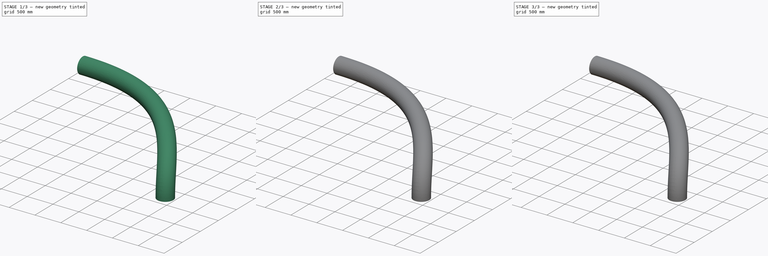
[diagram: build sequence overview — one tinted view per stage of 3, left to right]
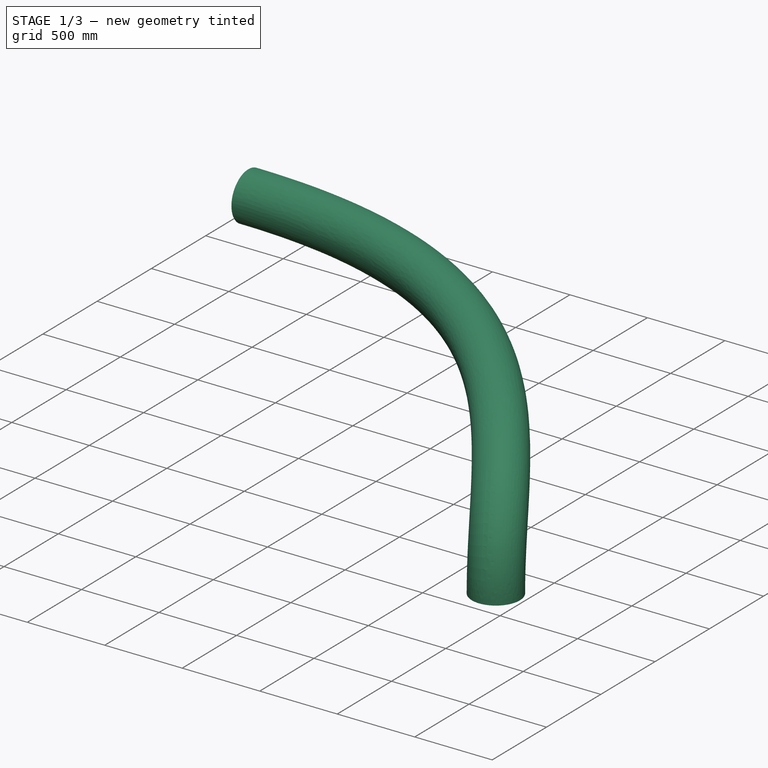
[diagram: stage 1 of 3 — iso view after this stage's code; geometry added in this stage tinted green]
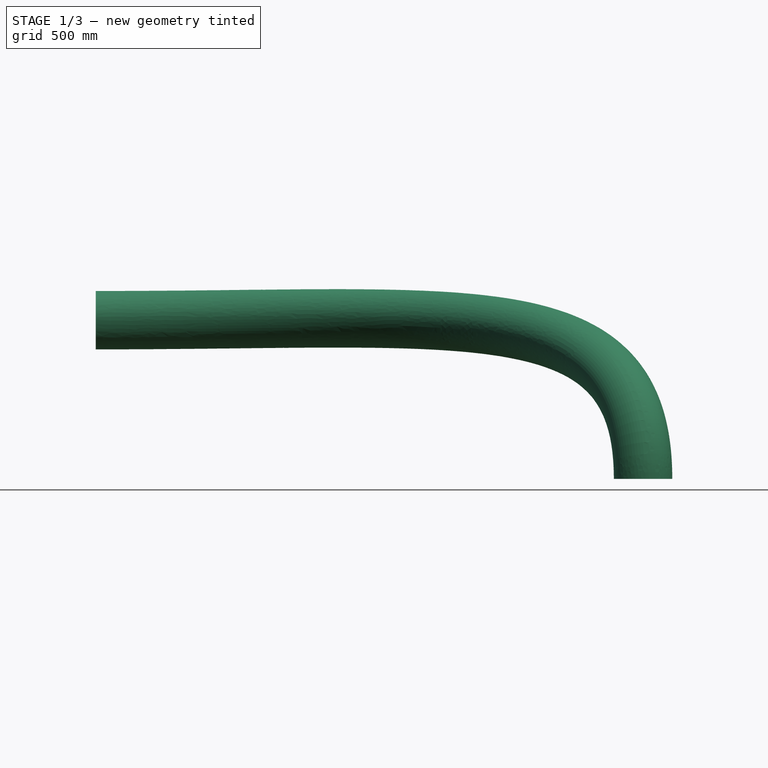
[diagram: stage 1 of 3 — front view after this stage's code; geometry added in this stage tinted green]
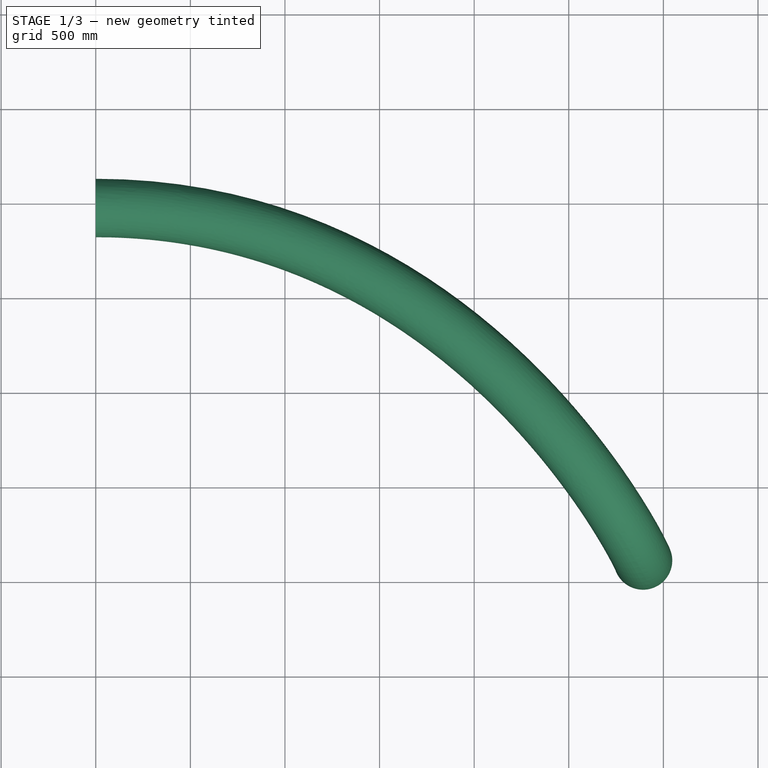
[diagram: stage 1 of 3 — top view after this stage's code; geometry added in this stage tinted green]
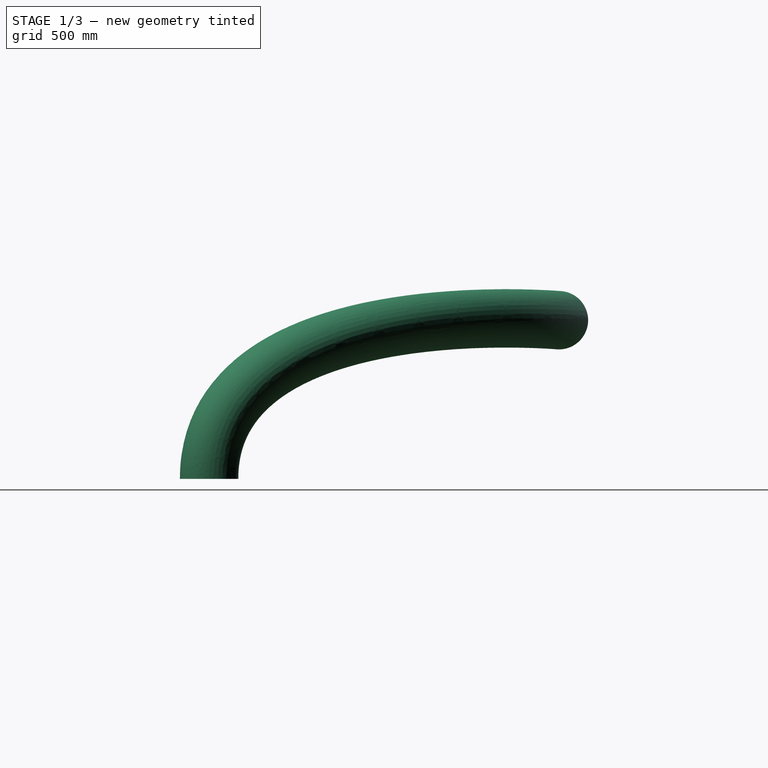
[diagram: stage 1 of 3 — right view after this stage's code; geometry added in this stage tinted green]
FCSTD DOCUMENT  (FreeCAD 1.0R38641 +468 (Git))
Label: Duct_flex_complete_R05
License: All rights reserved
LicenseURL: https://en.wikipedia.org/wiki/All_rights_reserved
objects: Sketcher::SketchObject×8, Part::Sweep×4, Part::Part2DObjectPython×3, App::DocumentObjectGroup×3, App::MaterialObjectPython×3, Part::Cut×3, Spreadsheet::Sheet×1, App::TextDocument×1, App::VarSet×1, App::DocumentObjectGroupPython×1
note: 26 computed .brp shape members not serialized (recipe doc carries the construction recipe); baked Part::Feature solids carry a one-line shape summary decoded from their .brp

FEATURE [Sketcher::SketchObject] Sketch004  label="Opening_01_external_insulation"
  ArcFitTolerance = 0
  AttachmentOffset = pos=(0,0,-1000) rot=(0,0,1;0rad)
  AttachmentSupport = -> [Line]
  FullyConstrained = true
  MakeInternals = false
  MapMode = 45
  Placement = pos=(-3000,-3535.92,838.348) rot=(0.57735,0.57735,0.57735;2.0944rad)
  expr: .AttachmentOffset.Base.z = -VarSet.Duct_Opening1_axis.Length / 2
  expr: .Constraints.Diameter = VarSet.Duct_Opening1_diameter + 2 * VarSet.Duct_Sheet_thickness + 2 * VarSet.Insulation_Thickness
  expr: AttachmentSupport = VarSet.Duct_Opening1_axis
  expr: MapReversed = VarSet.Duct_Opening1_axis_flip
  sketch-geometry (1):
    g0: Circle CenterX=0 CenterY=0 CenterZ=0 NormalX=0 NormalY=0 NormalZ=1 AngleXU=0 Radius=153.4
  constraints (2):
    c: Coincident(g0,g-1)
    c: Diameter(g0) = 306.8  'Diameter'
FEATURE [Sketcher::SketchObject] Sketch005  label="Opening_02_external_insulation"
  ArcFitTolerance = 0
  AttachmentOffset = pos=(0,0,-500) rot=(0,0,1;0rad)
  AttachmentSupport = -> [Line001]
  FullyConstrained = true
  MakeInternals = false
  MapMode = 45
  Placement = pos=(-107.465,-5384.62,0) rot=(0,0,1;0rad)
  expr: .AttachmentOffset.Base.z = -VarSet.Duct_Opening2_axis.Length / 2
  expr: .Constraints.Diameter = VarSet.Duct_Opening2_diameter + 2 * VarSet.Duct_Sheet_thickness + 2 * VarSet.Insulation_Thickness
  expr: AttachmentSupport = VarSet.Duct_Opening2_axis
  expr: MapReversed = VarSet.Duct_Opening2_axis_flip
  sketch-geometry (1):
    g0: Circle CenterX=0 CenterY=0 CenterZ=0 NormalX=0 NormalY=0 NormalZ=1 AngleXU=0 Radius=153.4
  constraints (2):
    c: Coincident(g0,g-1)
    c: Diameter(g0) = 306.8  'Diameter'
FEATURE [Part::Sweep] Sweep002  label="Duct_flex_external_insulation"
  Frenet = false
  Sections = -> [Sketch004,Sketch005]
  Solid = true
  Spine = -> BezCurve
  Transition = 2
  expr: Spine = VarSet.Duct_Axis_Bezier_curve
FEATURE [Sketcher::SketchObject] Sketch006  label="Opening_01_external_02"
  ArcFitTolerance = 0
  AttachmentOffset = pos=(0,0,-1000) rot=(0,0,1;0rad)
  AttachmentSupport = -> [Line]
  FullyConstrained = true
  MakeInternals = false
  MapMode = 45
  Placement = pos=(-3000,-3535.92,838.348) rot=(0.57735,0.57735,0.57735;2.0944rad)
  expr: .AttachmentOffset.Base.z = -VarSet.Duct_Opening1_axis.Length / 2
  expr: .Constraints.Diameter = VarSet.Duct_Opening1_diameter + 2 * VarSet.Duct_Sheet_thickness + 2 * VarSet.Insulation_Thickness + 2 * VarSet.Duct_Sheet_thickness
  expr: AttachmentSupport = VarSet.Duct_Opening1_axis
  expr: MapReversed = VarSet.Duct_Opening1_axis_flip
  sketch-geometry (1):
    g0: Circle CenterX=0 CenterY=0 CenterZ=0 NormalX=0 NormalY=0 NormalZ=1 AngleXU=0 Radius=154.4
  constraints (2):
    c: Coincident(g0,g-1)
    c: Diameter(g0) = 308.8  'Diameter'
FEATURE [Sketcher::SketchObject] Sketch007  label="Opening_02_external_02"
  ArcFitTolerance = 0
  AttachmentOffset = pos=(0,0,-500) rot=(0,0,1;0rad)
  AttachmentSupport = -> [Line001]
  FullyConstrained = true
  MakeInternals = false
  MapMode = 45
  Placement = pos=(-107.465,-5384.62,0) rot=(0,0,1;0rad)
  expr: .AttachmentOffset.Base.z = -VarSet.Duct_Opening2_axis.Length / 2
  expr: .Constraints.Diameter = VarSet.Duct_Opening2_diameter + 2 * VarSet.Duct_Sheet_thickness + 2 * VarSet.Insulation_Thickness + 2 * VarSet.Duct_Sheet_thickness
  expr: AttachmentSupport = VarSet.Duct_Opening2_axis
  expr: MapReversed = VarSet.Duct_Opening2_axis_flip
  sketch-geometry (1):
    g0: Circle CenterX=0 CenterY=0 CenterZ=0 NormalX=0 NormalY=0 NormalZ=1 AngleXU=0 Radius=154.4
  constraints (2):
    c: Coincident(g0,g-1)
    c: Diameter(g0) = 308.8  'Diameter'
FEATURE [Part::Sweep] Sweep003  label="Duct_flex_external_02"
  Frenet = false
  Sections = -> [Sketch006,Sketch007]
  Solid = true
  Spine = -> BezCurve
  Transition = 2
  expr: Spine = VarSet.Duct_Axis_Bezier_curve
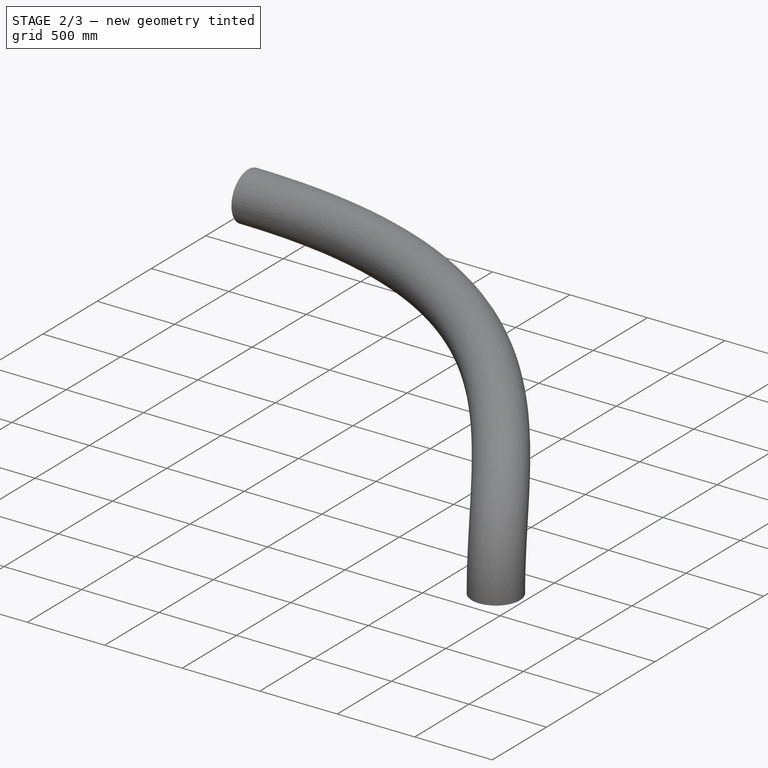
[diagram: stage 2 of 3 — iso view after this stage's code; geometry added in this stage tinted green]
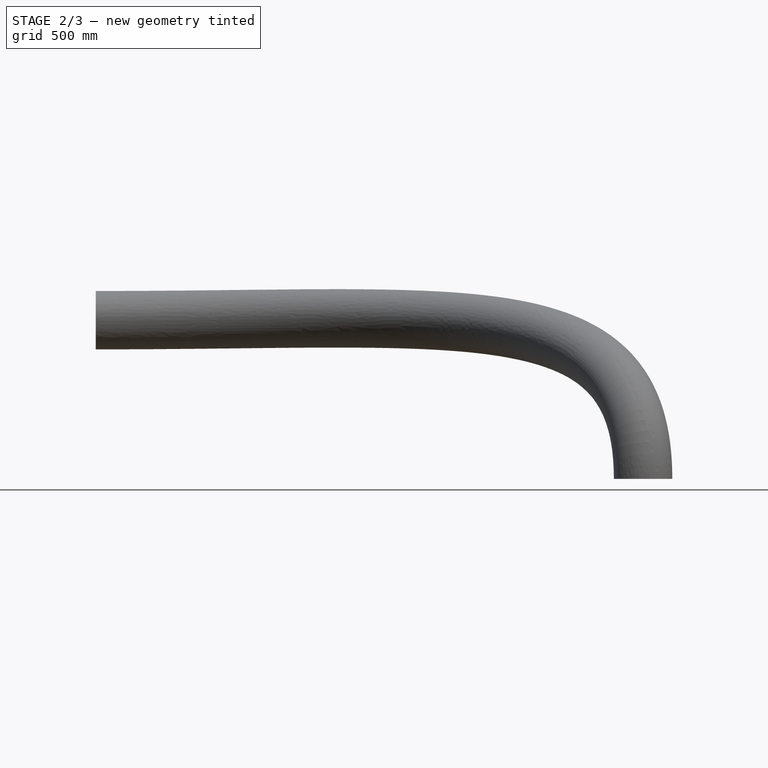
[diagram: stage 2 of 3 — front view after this stage's code; geometry added in this stage tinted green]
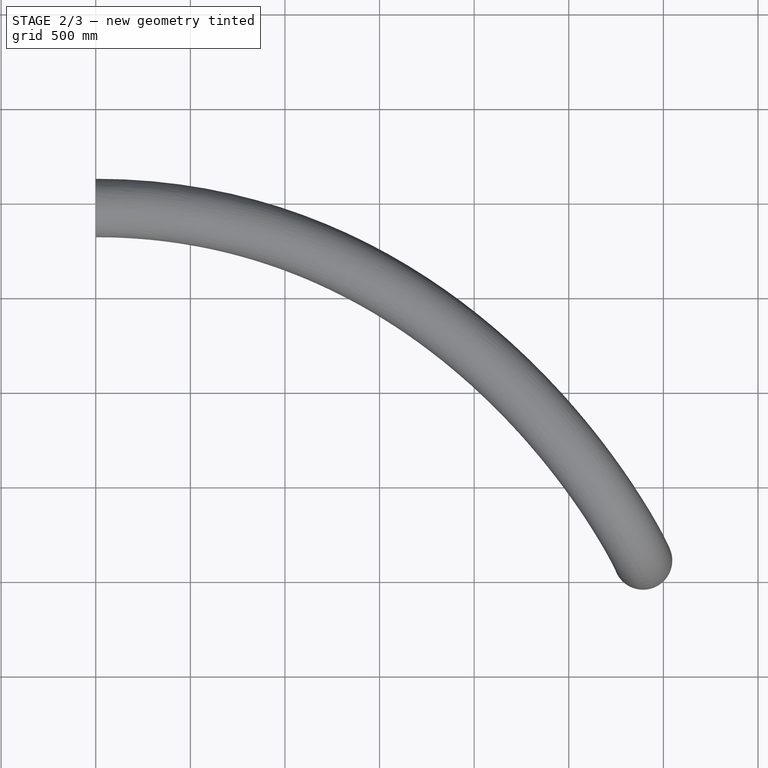
[diagram: stage 2 of 3 — top view after this stage's code; geometry added in this stage tinted green]
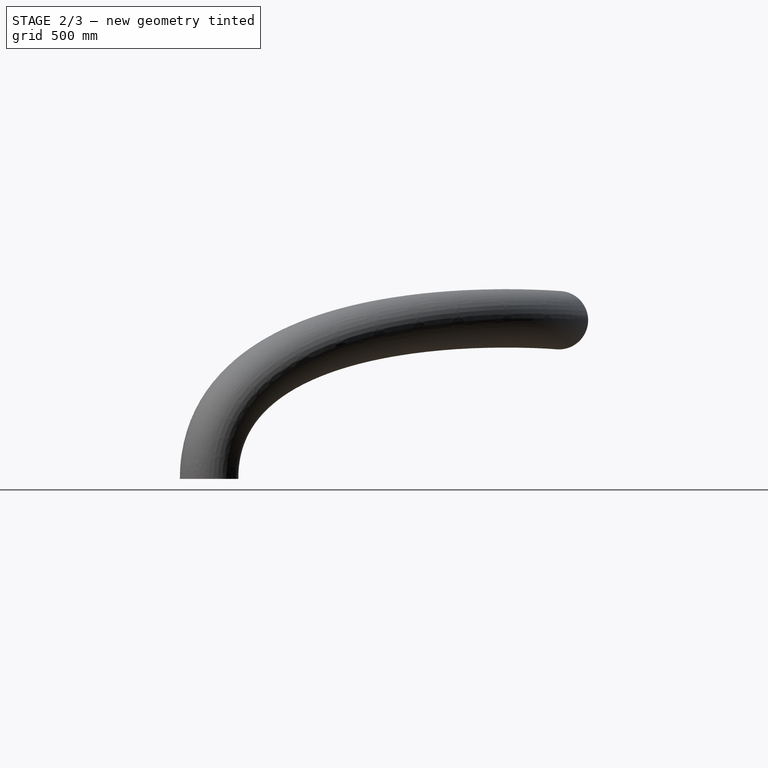
[diagram: stage 2 of 3 — right view after this stage's code; geometry added in this stage tinted green]
FEATURE [Part::Part2DObjectPython] Line  label="Opening1_axis"  # Draft 2D object (typed FeaturePython)
  Area = 0
  ChamferSize = 0
  Closed = false
  End = (-1000,-3535.92,838.348)
  FilletRadius = 0
  Length = 2000
  MakeFace = true
  Placement = pos=(-3000,-3535.92,838.348) rot=(0,0,1;0rad)
  Points = (2) [(0,0,0),(2000,0,0)]
  Start = (-3000,-3535.92,838.348)
  Subdivisions = 0
FEATURE [Part::Part2DObjectPython] Line001  label="Opening2_axis"  # Draft 2D object (typed FeaturePython)
  Area = 0
  ChamferSize = 0
  Closed = false
  End = (-107.465,-5384.62,1000)
  FilletRadius = 0
  Length = 1000
  MakeFace = true
  Placement = pos=(-107.465,-5384.62,0) rot=(0,0,1;0rad)
  Points = (2) [(0,0,0),(0,0,1000)]
  Start = (-107.465,-5384.62,0)
  Subdivisions = 0
FEATURE [Sketcher::SketchObject] Sketch  label="Opening_internal_02_"
  ArcFitTolerance = 0
  AttachmentOffset = pos=(0,0,-500) rot=(0,0,1;0rad)
  AttachmentSupport = -> [Line001]
  FullyConstrained = true
  MakeInternals = false
  MapMode = 45
  Placement = pos=(-107.465,-5384.62,0) rot=(0,0,1;0rad)
  expr: .AttachmentOffset.Base.z = -VarSet.Duct_Opening2_axis.Length / 2
  expr: .Constraints.Diameter = VarSet.Duct_Opening2_diameter
  expr: AttachmentSupport = VarSet.Duct_Opening2_axis
  expr: MapReversed = VarSet.Duct_Opening2_axis_flip
  sketch-geometry (1):
    g0: Circle CenterX=0 CenterY=0 CenterZ=0 NormalX=0 NormalY=0 NormalZ=1 AngleXU=0 Radius=127
  constraints (2):
    c: Coincident(g0,g-1)
    c: Diameter(g0) = 254  'Diameter'
FEATURE [Sketcher::SketchObject] Sketch001  label="Opening_internal_01"
  ArcFitTolerance = 0
  AttachmentOffset = pos=(0,0,-1000) rot=(0,0,1;0rad)
  AttachmentSupport = -> [Line]
  FullyConstrained = true
  MakeInternals = false
  MapMode = 45
  Placement = pos=(-3000,-3535.92,838.348) rot=(0.57735,0.57735,0.57735;2.0944rad)
  expr: .AttachmentOffset.Base.z = -VarSet.Duct_Opening1_axis.Length / 2
  expr: .Constraints.Diameter = VarSet.Duct_Opening1_diameter
  expr: AttachmentSupport = VarSet.Duct_Opening1_axis
  expr: MapReversed = VarSet.Duct_Opening1_axis_flip
  sketch-geometry (1):
    g0: Circle CenterX=0 CenterY=0 CenterZ=0 NormalX=0 NormalY=0 NormalZ=1 AngleXU=0 Radius=127
  constraints (2):
    c: Coincident(g0,g-1)
    c: Diameter(g0) = 254  'Diameter'
FEATURE [Part::Part2DObjectPython] BezCurve  label="Axis_BezCurve"  # Draft 2D object (typed FeaturePython)
  Area = 0
  Closed = false
  Degree = 3
  Length = 3994
  MakeFace = true
  Points = (4) [(-3000,-3535.92,838.348),(-1000,-3535.92,838.348),(-107.465,-5384.62,1000),(-107.465,-5384.62,0)]
FEATURE [Part::Sweep] Sweep  label="Duct_flex_internal_"
  Frenet = false
  Sections = -> [Sketch001,Sketch]
  Solid = true
  Spine = -> BezCurve
  Transition = 2
  expr: Spine = VarSet.Duct_Axis_Bezier_curve
  expr: Visibility = VarSet.Duct_Show_volume_only
FEATURE [Sketcher::SketchObject] Sketch002  label="Opening_02_external_"
  ArcFitTolerance = 0
  AttachmentOffset = pos=(0,0,-500) rot=(0,0,1;0rad)
  AttachmentSupport = -> [Line001]
  FullyConstrained = true
  MakeInternals = false
  MapMode = 45
  Placement = pos=(-107.465,-5384.62,0) rot=(0,0,1;0rad)
  expr: .AttachmentOffset.Base.z = -VarSet.Duct_Opening2_axis.Length / 2
  expr: .Constraints.Diameter = VarSet.Duct_Opening2_diameter + 2 * VarSet.Duct_Sheet_thickness
  expr: AttachmentSupport = VarSet.Duct_Opening2_axis
  expr: MapReversed = VarSet.Duct_Opening2_axis_flip
  sketch-geometry (1):
    g0: Circle CenterX=0 CenterY=0 CenterZ=0 NormalX=0 NormalY=0 NormalZ=1 AngleXU=0 Radius=128
  constraints (2):
    c: Coincident(g0,g-1)
    c: Diameter(g0) = 256  'Diameter'
FEATURE [Sketcher::SketchObject] Sketch003  label="Opening_01_external_"
  ArcFitTolerance = 0
  AttachmentOffset = pos=(0,0,-1000) rot=(0,0,1;0rad)
  AttachmentSupport = -> [Line]
  FullyConstrained = true
  MakeInternals = false
  MapMode = 45
  Placement = pos=(-3000,-3535.92,838.348) rot=(0.57735,0.57735,0.57735;2.0944rad)
  expr: .AttachmentOffset.Base.z = -VarSet.Duct_Opening1_axis.Length / 2
  expr: .Constraints.Diameter = VarSet.Duct_Opening1_diameter + 2 * VarSet.Duct_Sheet_thickness
  expr: AttachmentSupport = VarSet.Duct_Opening1_axis
  expr: MapReversed = VarSet.Duct_Opening1_axis_flip
  sketch-geometry (1):
    g0: Circle CenterX=0 CenterY=0 CenterZ=0 NormalX=0 NormalY=0 NormalZ=1 AngleXU=0 Radius=128
  constraints (2):
    c: Coincident(g0,g-1)
    c: Diameter(g0) = 256  'Diameter'
FEATURE [Part::Sweep] Sweep001  label="Duct_flex_external_"
  Frenet = false
  Sections = -> [Sketch003,Sketch002]
  Solid = true
  Spine = -> BezCurve
  Transition = 2
  expr: Spine = VarSet.Duct_Axis_Bezier_curve
FEATURE [Part::Cut] Cut002  label="Duct_flex_external_003"
  Base = -> Sweep003
  Base_Area = 3.87468e+06
  Material = -> Material049
  Tool = -> Sweep002
  expr: Base_Area = .Shape.Face1.Area + .Shape.Face2.Area
  expr: Material = VarSet.Materials_Sheet_metal
  expr: Visibility = VarSet.Duct_Duct_external * (1 - VarSet.Duct_Show_volume_only)
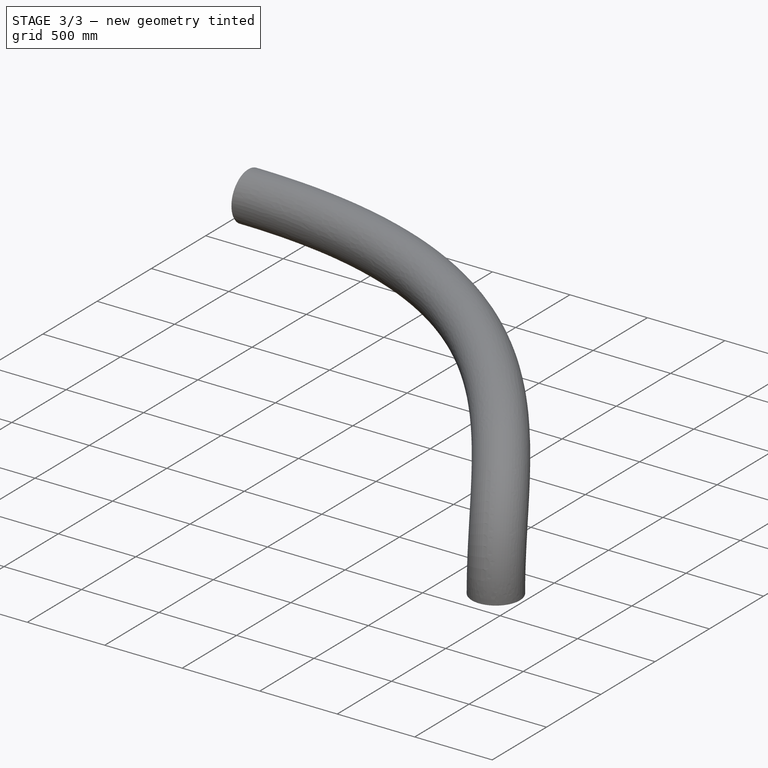
[diagram: stage 3 of 3 — iso view after this stage's code; geometry added in this stage tinted green]
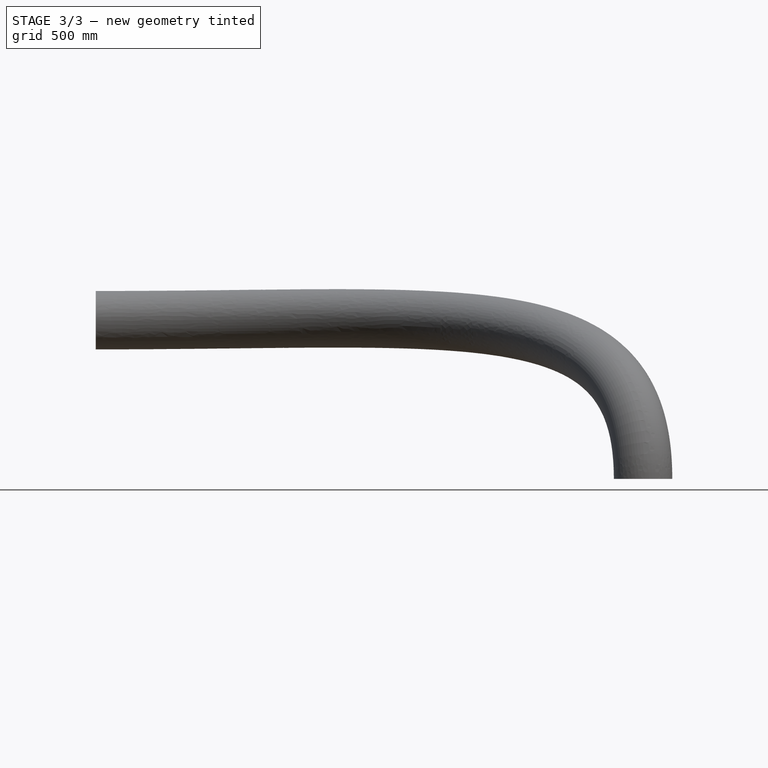
[diagram: stage 3 of 3 — front view after this stage's code; geometry added in this stage tinted green]
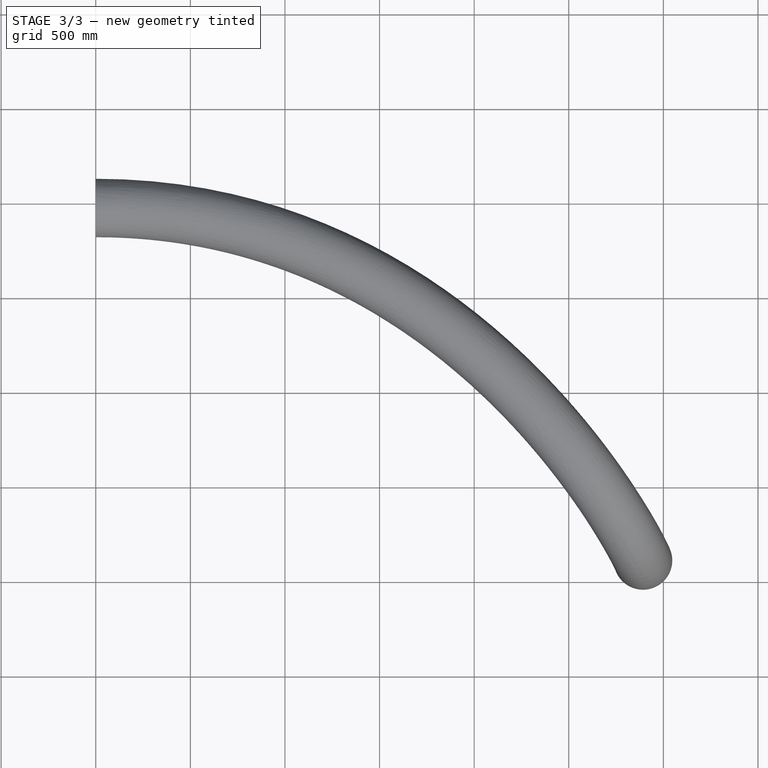
[diagram: stage 3 of 3 — top view after this stage's code; geometry added in this stage tinted green]
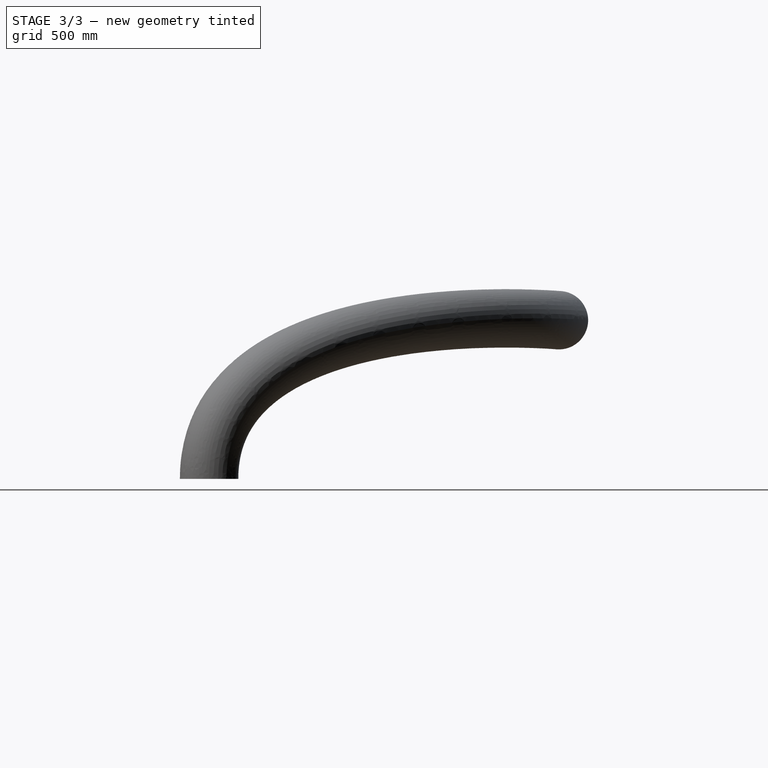
[diagram: stage 3 of 3 — right view after this stage's code; geometry added in this stage tinted green]
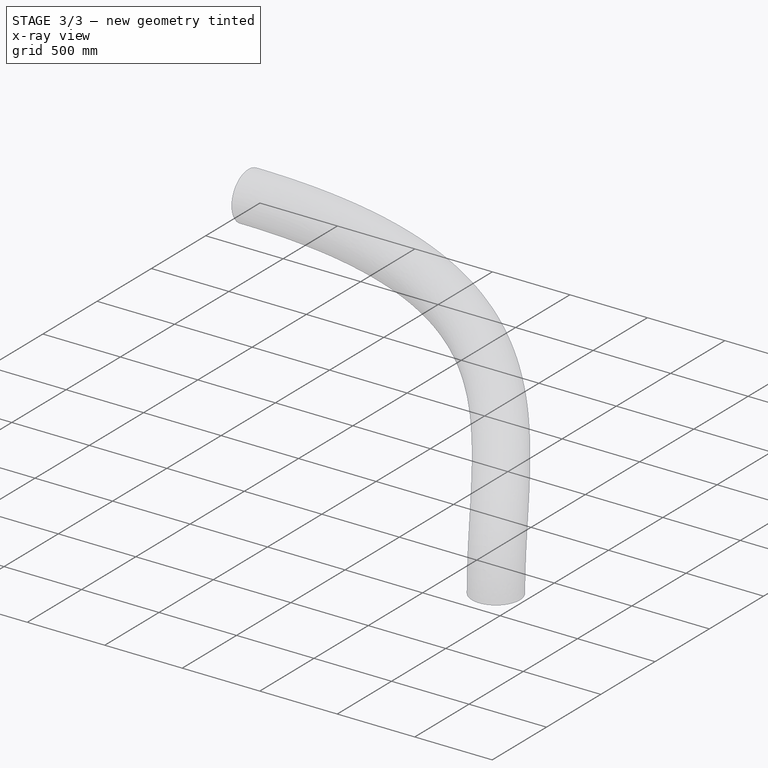
[diagram: stage 3 of 3 — x-ray composite at the iso view; earlier geometry ghosted, this stage's added geometry solid]
FEATURE [Spreadsheet::Sheet] Spreadsheet003  label="Output_flex_duct_"
  cells = A1='Description:; A2==<<Flex duct for air conditioning of %s>> % round(VarSet.Duct_Axis_Bezier_curve.Length) + << in lenght, composed of %s>> % VarSet.Materials_Sheet_metal.Label + << sheets, with %s>> % VarSet.Duct_Opening1_diameter + << in diameter>> + VarSet.Insulation_Insulation * (<<, with an internal insulation layer of %s>> % VarSet.Insulation_Thickness + << thick %s>> % VarSet.Materials_Insulation.Label + << blanket>>) + <<.>>; A5='Components; B5='Dimensions; C5='Area; D5='Material; A6='Flex duct; C6==Cut.Base_Area + Cut002.Base_Area * VarSet.Duct_Duct_external; D6==VarSet.Materials_Sheet_metal.Label; A7='1.1. Duct length:; B7==VarSet.Duct_Axis_Bezier_curve.Length; A8='1.2. Diameter 1:; B8==VarSet.Duct_Opening1_diameter; A9='1.3. Diameter 2:; B9==VarSet.Duct_Opening2_diameter; A10='3. Insulation; C10==VarSet.Insulation_Insulation * str(round(Cut002.Base_Area)) + <<--->> * (1 - VarSet.Insulation_Insulation); D10==VarSet.Materials_Insulation.Label * VarSet.Insulation_Insulation + <<--->> * (1 - VarSet.Insulation_Insulation); A11='3.1. Insulation thickness:; B11==str(VarSet.Insulation_Thickness) * VarSet.Insulation_Insulation + <<--->> * (1 - VarSet.Insulation_Insulation)
FEATURE [App::DocumentObjectGroup] Group001  label="Spreadsheet_output_"
  Group = -> [Spreadsheet003]
FEATURE [App::MaterialObjectPython] Material001  label="glass wool"  # material (typed FeaturePython)
  Material = Color=(0.8, 0.8, 0.8, 1.0); DiffuseColor=(0.8, 0.8, 0.8, 1.0); Name=glass wool; SectionColor=(0.8, 0.8, 0.8, 1.0); Transparency=0; ViewColor=(0.8, 0.8, 0.8, 1.0)
  Transparency = 0
FEATURE [App::TextDocument] Text_document  label="Instructions"
  Text = 1. Construction of the three axes in the final position of the project:\n\n. Construct the two axes of openings 1 and 2 perpendicular to these (use only straight lines);\n\n. Construct the main axis of the duct using only the Bézier curve, clicking on the following four points in sequence: center of opening 1, end point of the axis perpendicular to opening 1, end point of the axis perpendicular to opening 2 and center of opening 2.\n\n. Before applying the ducts in the final network, review the spreadsheets of the duct files according to the project needs. This will reduce the final review work (see item 3). Be careful not to erase the automation (using expressions) contained in the spreadsheet fields.\n\n2. Application of the component in the final project:\n\n. In the properties window of the flex duct, replace the three existing axes with those corresponding to the final project (fields Axis_Bezier_cuver, Opening1_axis and Opening2_axis).\n\n. Adjust the dimensions of openings 1 and 2 according to the design. If these pre-set dimensions are large in relation to the duct axis radius, this may distort the shape of the duct, but this should be corrected after adjustment to the design;\n\n. In case of distortions, also try flipping the axis of opening 1 or 2.\n\n3. General drawing of the network\n\n. If you prefer, you can create a spreadsheet of the ducts used linked to the individual ones, presenting a summary of the descriptions, areas, materials, dimensions, as well as their sums.\n\n4. Help and comments\n\n. If you encounter any problems and require help or want to make a comment, use the FreeCAD forum for this purpose.
FEATURE [App::MaterialObjectPython] Material049  label="galvanized steel generic"  # material (typed FeaturePython)
  Material = AuthorAndLicense=Uwe Stöhr; CardName=Iron-Generic; Color=(0.8, 0.8, 0.8, 1.0); Density=7874 kg/m^3; DiffuseColor=(0.3607843220233917, 0.3607843220233917, 0.40784314274787903); ElectricalConductivity=10.3 MS/m; Father=Metal; KindOfMaterial=Iron; Name=galvanized steel generic; PoissonRatio=0.29; RelativePermeability=5000.0; SectionColor=(0.8, 0.8, 0.8, 1.0); ShearModulus=82.0 GPa; SpecificHeat=460.5 J/kg/K; ThermalConductivity=80.4 W/m/K; ThermalExpansionCoefficient=11.8 µm/m/K; Transparency=0; UltimateTensileStrength=497 MPa; ViewColor=(0.8, 0.8, 0.8, 1.0); YieldStrength=428 MPa; YoungsModulus=211 GPa
  Transparency = 0
FEATURE [Part::Cut] Cut  label="Duct_flex_internal_001"
  Base = -> Sweep001
  Base_Area = 3.21217e+06
  Material = -> Material049
  Tool = -> Sweep
  expr: Base_Area = .Shape.Face1.Area + .Shape.Face2.Area
  expr: Material = VarSet.Materials_Sheet_metal
  expr: Visibility = VarSet.Duct_Duct_internal * (1 - VarSet.Duct_Show_volume_only)
FEATURE [App::MaterialObjectPython] Material050  label="glass wool with aluminium foill generic"  # material (typed FeaturePython)
  Material = AuthorAndLicense=Uwe Stöhr; CardName=Iron-Generic; Color=(0.8, 0.8, 0.8, 1.0); Density=7874 kg/m^3; DiffuseColor=(0.7372549176216125, 0.7372549176216125, 0.7372549176216125); ElectricalConductivity=10.3 MS/m; Father=Metal; KindOfMaterial=Iron; Name=glass wool with aluminium foill generic; PoissonRatio=0.29; RelativePermeability=5000.0; SectionColor=(0.8, 0.8, 0.8, 1.0); ShearModulus=82.0 GPa; SpecificHeat=460.5 J/kg/K; ThermalConductivity=80.4 W/m/K; ThermalExpansionCoefficient=11.8 µm/m/K; Transparency=0; UltimateTensileStrength=497 MPa; ViewColor=(0.8, 0.8, 0.8, 1.0); YieldStrength=428 MPa; YoungsModulus=211 GPa
  Transparency = 0
FEATURE [App::VarSet] VarSet  label="Duct_flex_properties"
  Duct_Axis_Bezier_curve = -> BezCurve
  Duct_Duct_external = true
  Duct_Duct_internal = true
  Duct_Opening1_axis = -> Line
  Duct_Opening1_axis_flip = false
  Duct_Opening1_diameter = 254
  Duct_Opening2_axis = -> Line001
  Duct_Opening2_axis_flip = false
  Duct_Opening2_diameter = 254
  Duct_Opening2_horizontal_position = 0
  Duct_Opening2_vertical_position = 0
  Duct_Sheet_thickness = 1
  Duct_Show_volume_only = false
  Insulation_Insulation = true
  Insulation_Thickness = 25.4
  Materials_Insulation = -> Material050
  Materials_Sheet_metal = -> Material049
  expr: Insulation_Thickness = 1 in
FEATURE [Part::Cut] Cut001  label="Insulation_"
  Base = -> Sweep002
  Base_Area = 3.84959e+06
  Material = -> Material050
  Tool = -> Sweep001
  expr: Base_Area = .Shape.Face1.Area + .Shape.Face2.Area
  expr: Material = VarSet.Materials_Insulation
  expr: Visibility = VarSet.Insulation_Insulation * (1 - VarSet.Duct_Show_volume_only)
FEATURE [App::DocumentObjectGroup] Group  label="Components"
  Group = -> [Cut,Cut001,Cut002,Line,Line001]
FEATURE [App::DocumentObjectGroupPython] MaterialContainer  label="Materials"  # scripted group (container) (typed FeaturePython)
  Group = -> [Material001,Material050,Material049]
FEATURE [App::DocumentObjectGroup] Group002  label="Duct_flex_#_"
  Group = -> [VarSet,Group,Group001,MaterialContainer,Text_document]
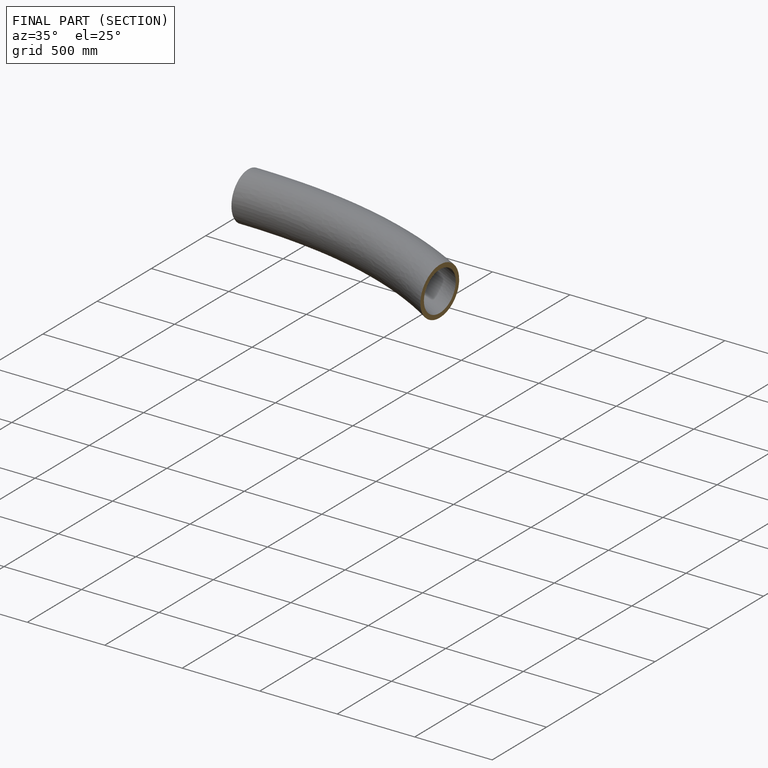
[diagram: finished part — half-section view (interior)]
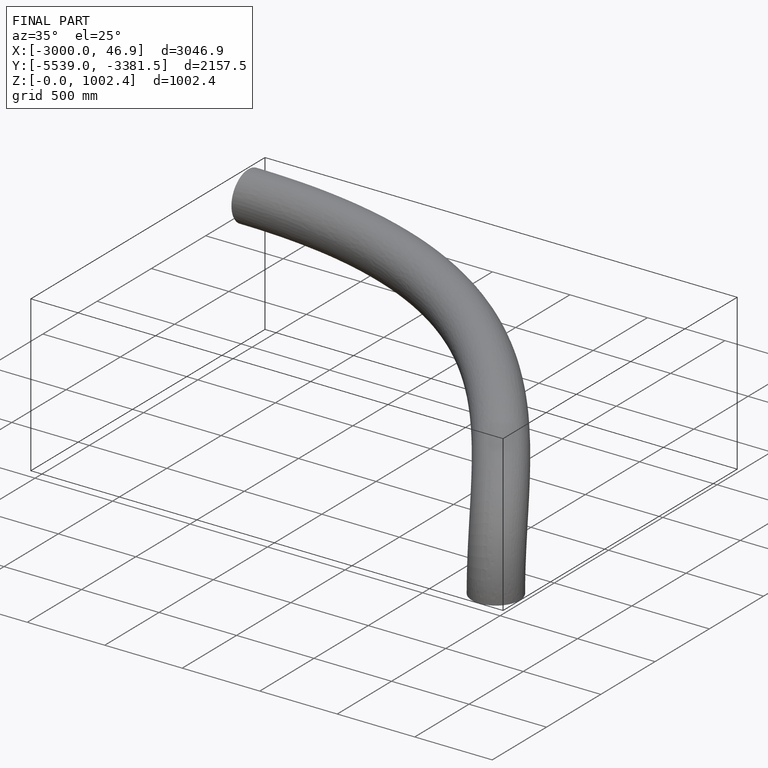
[diagram: finished part — iso view with bounding-box wireframe]
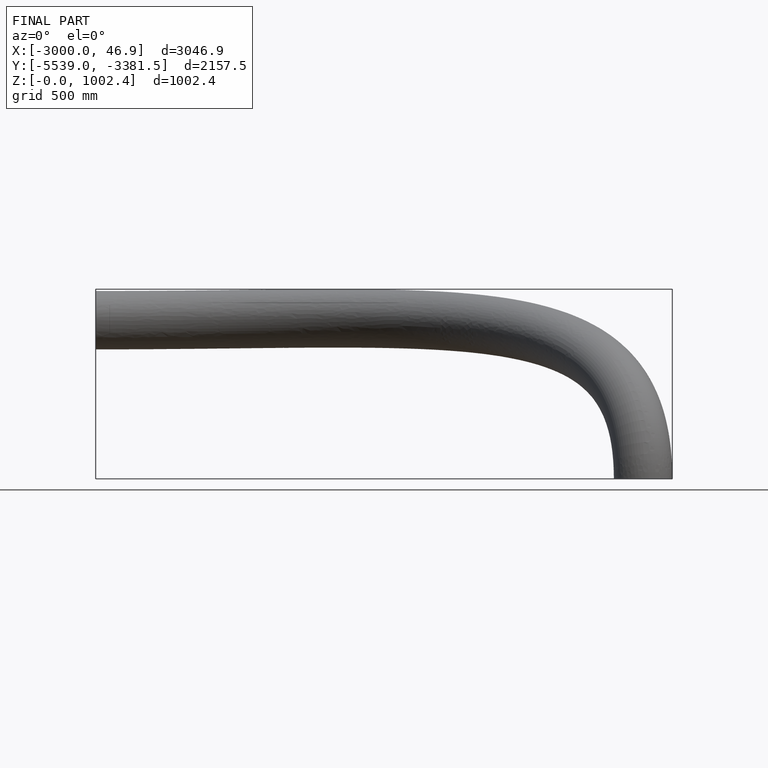
[diagram: finished part — front view with bounding-box wireframe]
